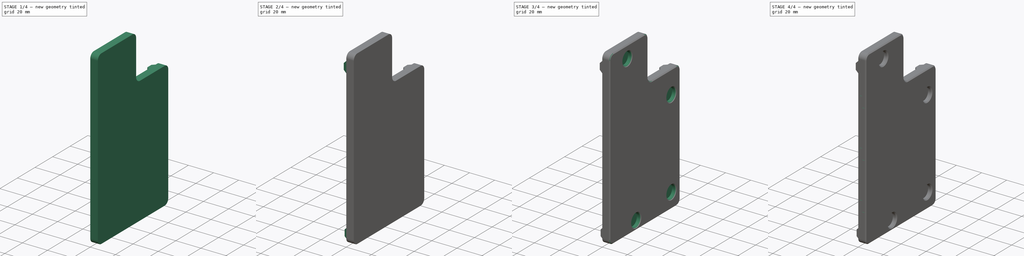
[diagram: build sequence overview — one tinted view per stage of 4, left to right]
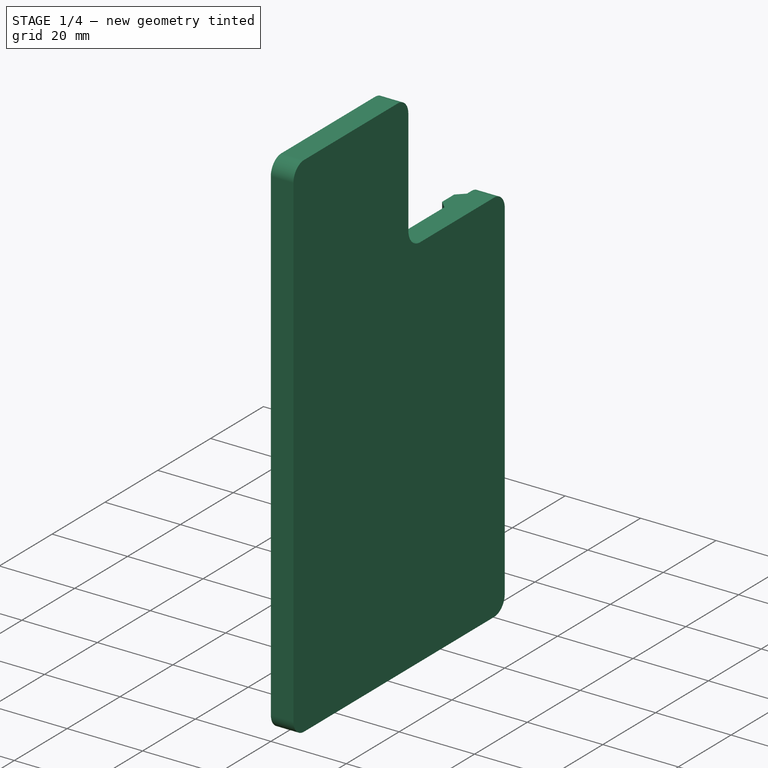
[diagram: stage 1 of 4 — iso view after this stage's code; geometry added in this stage tinted green]
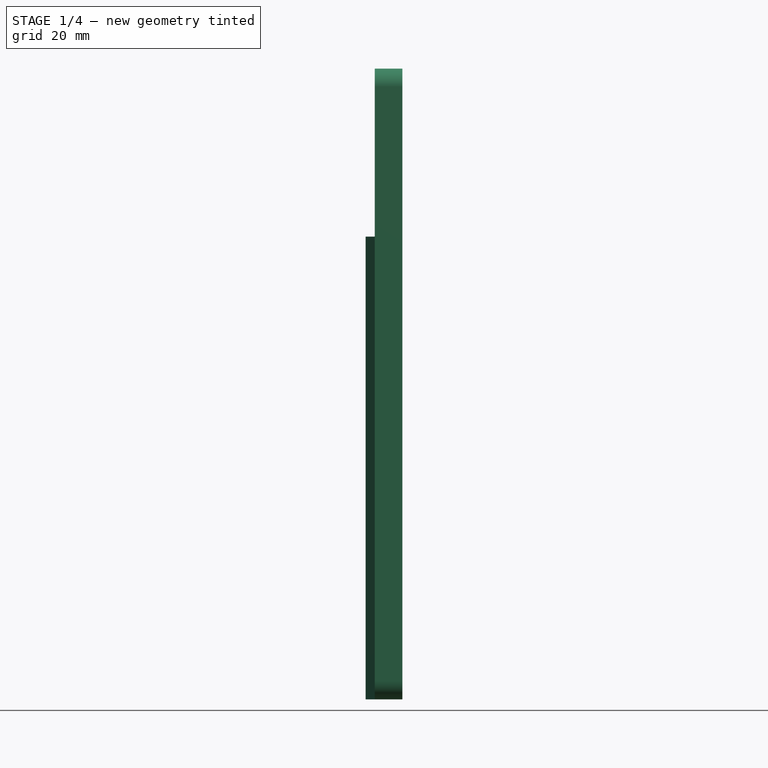
[diagram: stage 1 of 4 — front view after this stage's code; geometry added in this stage tinted green]
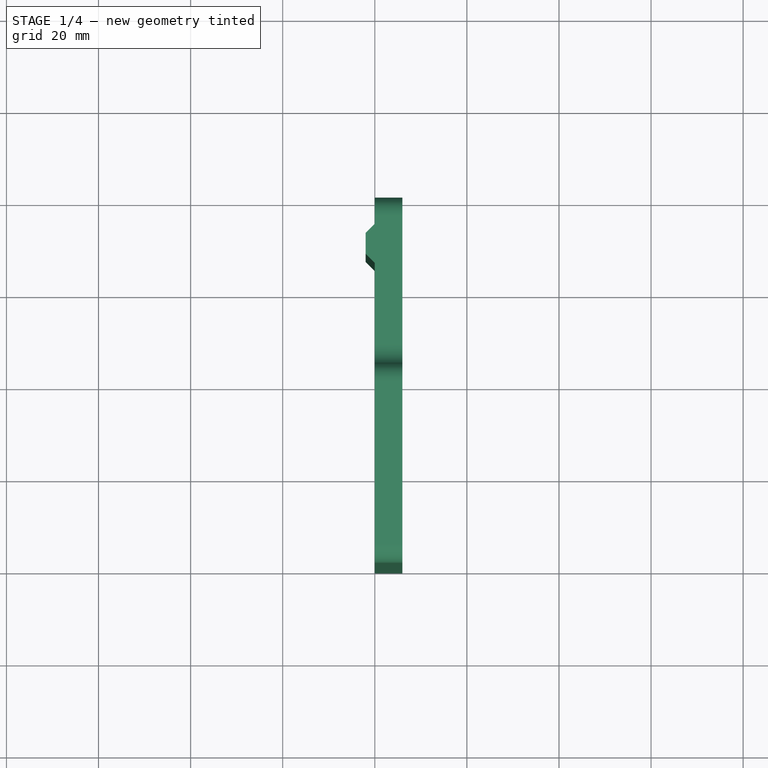
[diagram: stage 1 of 4 — top view after this stage's code; geometry added in this stage tinted green]
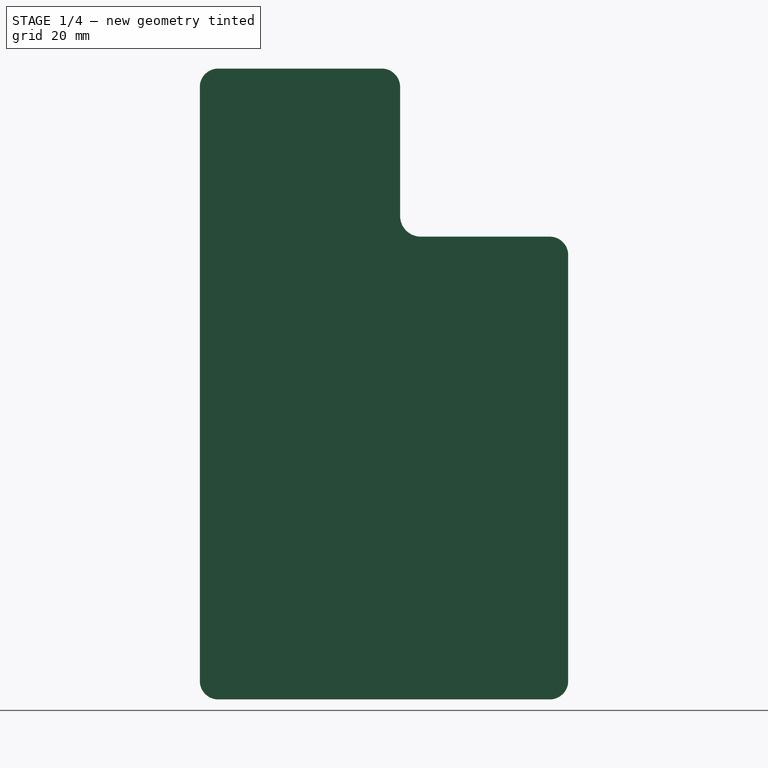
[diagram: stage 1 of 4 — right view after this stage's code; geometry added in this stage tinted green]
FCSTD DOCUMENT  (FreeCAD 1.0R39109 (Git))
Label: y-extrusion-support
License: All rights reserved
LicenseURL: http://en.wikipedia.org/wiki/All_rights_reserved
objects: Sketcher::SketchObject×8, PartDesign::Pad×4, PartDesign::Pocket×4, PartDesign::Chamfer×1, PartDesign::LinearPattern×1, PartDesign::Body×1
note: 46 computed .brp shape members not serialized (recipe doc carries the construction recipe); baked Part::Feature solids carry a one-line shape summary decoded from their .brp

FEATURE [Sketcher::SketchObject] Sketch334
  ArcFitTolerance = 0
  AttachmentSupport = -> [YZ_Plane300]
  FullyConstrained = true
  MakeInternals = false
  MapMode = 5
  Placement = pos=(0,0,0) rot=(0.57735,0.57735,0.57735;2.0944rad)
  sketch-geometry (21):
    g0: LineSegment StartX=-76 StartY=0 StartZ=0 EndX=-40.5 EndY=0 EndZ=0
    g1: LineSegment StartX=-36.5 StartY=-4 StartZ=0 EndX=-36.5 EndY=-32 EndZ=0
    g2: LineSegment StartX=-32 StartY=-36.5 StartZ=0 EndX=-4 EndY=-36.5 EndZ=0
    g3: LineSegment StartX=0 StartY=-40.5 StartZ=0 EndX=0 EndY=-133 EndZ=0
    g4: LineSegment StartX=-4 StartY=-137 StartZ=0 EndX=-76 EndY=-137 EndZ=0
    g5: LineSegment StartX=-80 StartY=-133 StartZ=0 EndX=-80 EndY=-4 EndZ=0
    g6: LineSegment [constr] StartX=0 StartY=-36 StartZ=0 EndX=-32 EndY=-36 EndZ=0
    g7: LineSegment [constr] StartX=-36 StartY=-32 StartZ=0 EndX=-36 EndY=0 EndZ=0
    g8: LineSegment [constr] StartX=-16 StartY=-36 StartZ=0 EndX=-16 EndY=-36.5 EndZ=0
    g9: ArcOfCircle CenterX=-32 CenterY=-32 CenterZ=0 NormalX=0 NormalY=0 NormalZ=1 AngleXU=0 Radius=4.5 StartAngle=3.14159 EndAngle=4.71239
    g10: ArcOfCircle [constr] CenterX=-32 CenterY=-32 CenterZ=0 NormalX=0 NormalY=0 NormalZ=1 AngleXU=0 Radius=4 StartAngle=3.14159 EndAngle=4.71239
    g11: ArcOfCircle CenterX=-76 CenterY=-4 CenterZ=0 NormalX=0 NormalY=0 NormalZ=1 AngleXU=0 Radius=4 StartAngle=1.5708 EndAngle=3.14159
    g12: GeomPoint [constr] X=-80 Y=0 Z=0
    g13: ArcOfCircle CenterX=-40.5 CenterY=-4 CenterZ=0 NormalX=0 NormalY=0 NormalZ=1 AngleXU=0 Radius=4 StartAngle=0 EndAngle=1.5708
    g14: GeomPoint [constr] X=-36.5 Y=0 Z=0
    g15: ArcOfCircle CenterX=-4 CenterY=-40.5 CenterZ=0 NormalX=0 NormalY=0 NormalZ=1 AngleXU=0 Radius=4 StartAngle=-9e-16 EndAngle=1.5708
    g16: GeomPoint [constr] X=0 Y=-36.5 Z=0
    g17: ArcOfCircle CenterX=-4 CenterY=-133 CenterZ=0 NormalX=0 NormalY=0 NormalZ=1 AngleXU=0 Radius=4 StartAngle=4.71239 EndAngle=6.28319
    g18: GeomPoint [constr] X=0 Y=-137 Z=0
    g19: ArcOfCircle CenterX=-76 CenterY=-133 CenterZ=0 NormalX=0 NormalY=0 NormalZ=1 AngleXU=0 Radius=4 StartAngle=3.14159 EndAngle=4.71239
    g20: GeomPoint [constr] X=-80 Y=-137 Z=0
  constraints (51):
    c: PointOnObject(g12,g-1)
    c: PointOnObject(g14,g-1)
    c: Vertical(g1)
    c: PointOnObject(g16,g-2)
    c: Horizontal(g2)
    c: PointOnObject(g18,g-2)
    c: Horizontal(g4)
    c: Vertical(g5)
    c: PointOnObject(g6,g-2)
    c: Horizontal(g6)
    c: PointOnObject(g7,g-1)
    c: Vertical(g7)
    c: Equal(g7,g6)
    c: DistanceY(g6) = -36
    c: DistanceY(g16,g6) = 0.5
    c: PointOnObject(g8,g2)
    c: Vertical(g8)
    c: Symmetric(g6,g6,g8)
    c: DistanceY(g18) = -137
    c: DistanceX(g12) = -80
    c: Coincident(g10,g9)
    c: Tangent(g10,g7) = 1.5708
    c: Tangent(g10,g6) = 1.5708
    c: Tangent(g9,g2) = -1.5708
    c: Radius(g10) = 4
    c: PointOnObject(g12,g0)
    c: PointOnObject(g12,g5)
    c: Tangent(g0,g11) = 1.5708
    c: Tangent(g5,g11) = 1.5708
    c: PointOnObject(g14,g0)
    c: PointOnObject(g14,g1)
    c: Tangent(g0,g13) = 1.5708
    c: Tangent(g1,g13) = 1.5708
    c: PointOnObject(g16,g2)
    c: PointOnObject(g16,g3)
    c: Tangent(g2,g15) = 1.5708
    c: Tangent(g3,g15) = 1.5708
    c: PointOnObject(g18,g3)
    c: PointOnObject(g18,g4)
    c: Tangent(g3,g17) = 1.5708
    c: Tangent(g4,g17) = 1.5708
    c: PointOnObject(g20,g4)
    c: PointOnObject(g20,g5)
    c: Tangent(g4,g19) = 1.5708
    c: Tangent(g5,g19) = 1.5708
    c: Equal(g11,g13)
    c: Equal(g13,g15)
    c: Equal(g15,g17)
    c: Equal(g17,g19)
    c: Radius(g19) = 4
    c: Tangent(g9,g1) = -1.5708
FEATURE [PartDesign::Pad] Pad078
  Direction = (1,0,0)
  Length = 6
  Length2 = 10
  Placement = pos=(0,0,0) rot=(1,1,1;2.0944rad)
  Profile = -> Sketch334
  ReferenceAxis = -> Sketch334 [N_Axis]
  Suppressed = false
  Type = 0
FEATURE [Sketcher::SketchObject] Sketch335
  ArcFitTolerance = 0
  AttachmentSupport = -> [XY_Plane300]
  FullyConstrained = true
  MakeInternals = false
  MapMode = 5
  sketch-geometry (10):
    g0: LineSegment [constr] StartX=0 StartY=-5.3 StartZ=0 EndX=-2 EndY=-7.3 EndZ=0
    g1: LineSegment [constr] StartX=-2 StartY=-7.3 StartZ=0 EndX=-2 EndY=-12.7 EndZ=0
    g2: LineSegment [constr] StartX=-2 StartY=-12.7 StartZ=0 EndX=0 EndY=-14.7 EndZ=0
    g3: LineSegment [constr] StartX=0 StartY=-14.7 StartZ=0 EndX=0 EndY=-5.3 EndZ=0
    g4: GeomPoint [constr] X=0 Y=-10 Z=0
    g5: LineSegment StartX=0 StartY=-5.72426 StartZ=0 EndX=-2 EndY=-7.72426 EndZ=0
    g6: LineSegment StartX=-2 StartY=-7.72426 StartZ=0 EndX=-2 EndY=-12.2757 EndZ=0
    g7: LineSegment StartX=-2 StartY=-12.2757 StartZ=0 EndX=0 EndY=-14.2757 EndZ=0
    g8: LineSegment StartX=0 StartY=-14.2757 StartZ=0 EndX=0 EndY=-5.72426 EndZ=0
    g9: LineSegment [constr] StartX=-1 StartY=-6.3 StartZ=0 EndX=-0.787868 EndY=-6.51213 EndZ=0
  constraints (27):
    c: PointOnObject(g0,g-2)
    c: Coincident(g0,g1)
    c: Vertical(g1)
    c: Coincident(g1,g2)
    c: PointOnObject(g2,g-2)
    c: Coincident(g2,g3)
    c: Coincident(g3,g0)
    c: Perpendicular(g2,g0)
    c: DistanceX(g0,g0) = 2
    c: DistanceY(g1,g1) = 5.4
    c: Symmetric(g2,g0,g4)
    c: DistanceY(g4) = -10
    c: Angle(g0) = -2.35619
    c: PointOnObject(g5,g3)
    c: PointOnObject(g5,g1)
    c: Coincident(g5,g6)
    c: PointOnObject(g6,g1)
    c: Coincident(g6,g7)
    c: Coincident(g7,g8)
    c: Coincident(g8,g5)
    c: Parallel(g7,g2)
    c: Parallel(g5,g0)
    c: Symmetric(g5,g7,g4)
    c: PointOnObject(g9,g5)
    c: Perpendicular(g5,g9)
    c: Symmetric(g0,g0,g9)
    c: Distance(g9) = 0.3
FEATURE [PartDesign::Pad] Pad079
  BaseFeature = -> Pad078
  Direction = (0,0,1)
  Length = 137
  Length2 = -36.5
  Placement = pos=(0,0,0) rot=(1,1,1;2.0944rad)
  Profile = -> Sketch335
  ReferenceAxis = -> Sketch335 [N_Axis]
  Reversed = true
  Suppressed = false
  Type = 4
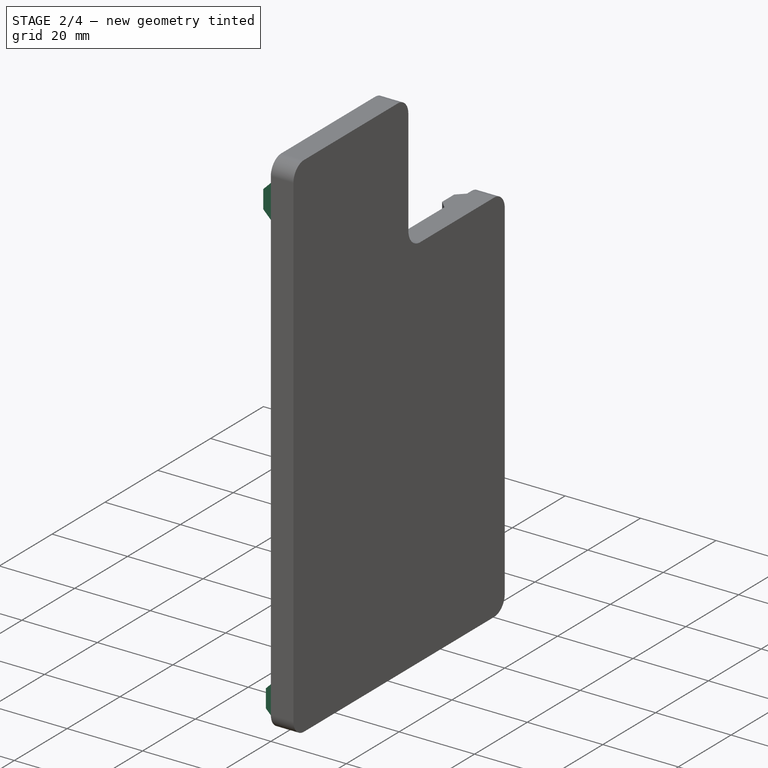
[diagram: stage 2 of 4 — iso view after this stage's code; geometry added in this stage tinted green]
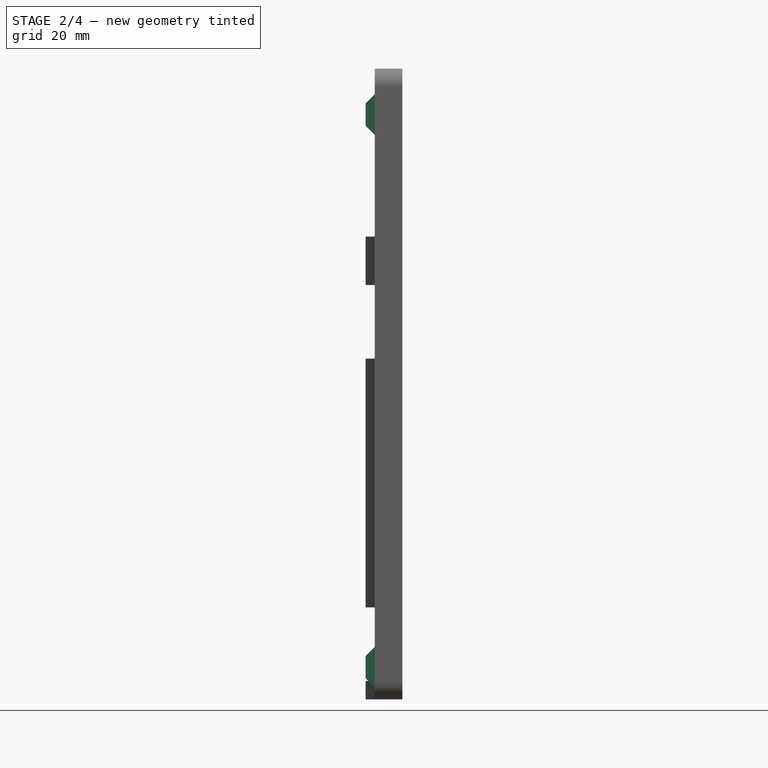
[diagram: stage 2 of 4 — front view after this stage's code; geometry added in this stage tinted green]
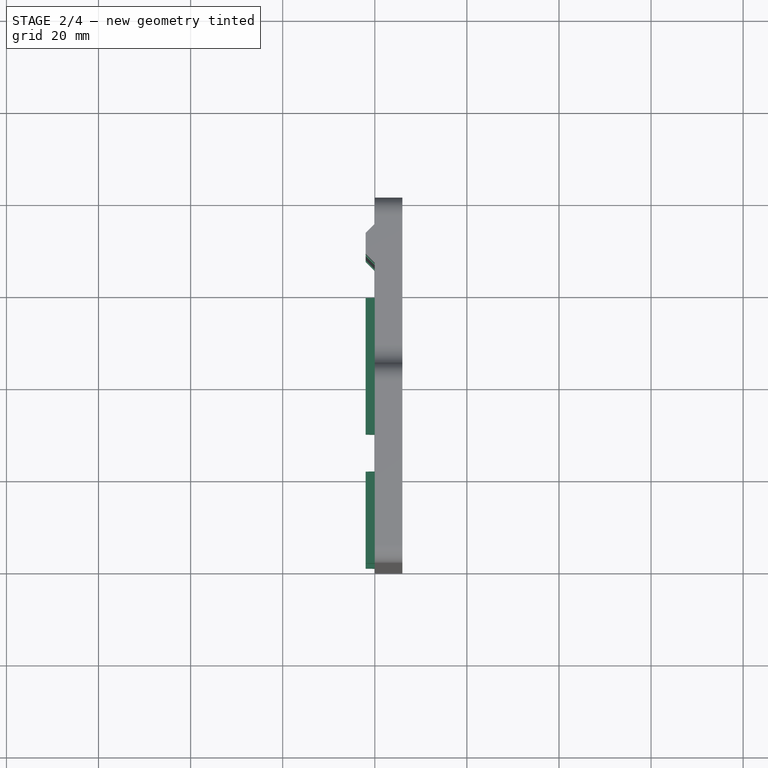
[diagram: stage 2 of 4 — top view after this stage's code; geometry added in this stage tinted green]
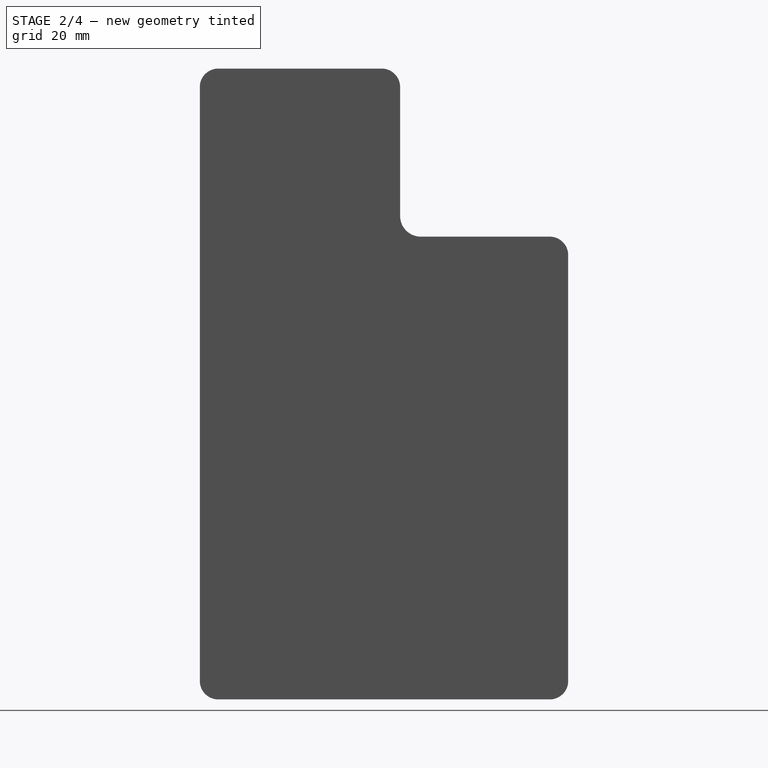
[diagram: stage 2 of 4 — right view after this stage's code; geometry added in this stage tinted green]
FEATURE [Sketcher::SketchObject] Sketch337
  ArcFitTolerance = 0
  AttachmentSupport = -> [YZ_Plane300]
  FullyConstrained = true
  MakeInternals = false
  MapMode = 5
  Placement = pos=(0,0,0) rot=(0.57735,0.57735,0.57735;2.0944rad)
  sketch-geometry (20):
    g0: LineSegment StartX=-20 StartY=-47 StartZ=0 EndX=0 EndY=-47 EndZ=0
    g1: LineSegment StartX=0 StartY=-47 StartZ=0 EndX=0 EndY=-63 EndZ=0
    g2: LineSegment StartX=0 StartY=-63 StartZ=0 EndX=-20 EndY=-63 EndZ=0
    g3: LineSegment StartX=-20 StartY=-63 StartZ=0 EndX=-20 EndY=-47 EndZ=0
    g4: GeomPoint [constr] X=-10 Y=-55 Z=0
    g5: LineSegment StartX=-68 StartY=0 StartZ=0 EndX=-52 EndY=0 EndZ=0
    g6: LineSegment StartX=-52 StartY=0 StartZ=0 EndX=-52 EndY=-20 EndZ=0
    g7: LineSegment StartX=-52 StartY=-20 StartZ=0 EndX=-68 EndY=-20 EndZ=0
    g8: LineSegment StartX=-68 StartY=-20 StartZ=0 EndX=-68 EndY=0 EndZ=0
    g9: LineSegment StartX=-58 StartY=-120 StartZ=0 EndX=-42 EndY=-120 EndZ=0
    g10: LineSegment StartX=-42 StartY=-120 StartZ=0 EndX=-42 EndY=-140 EndZ=0
    g11: LineSegment StartX=-42 StartY=-140 StartZ=0 EndX=-58 EndY=-140 EndZ=0
    g12: LineSegment StartX=-58 StartY=-140 StartZ=0 EndX=-58 EndY=-120 EndZ=0
    g13: GeomPoint [constr] X=-60 Y=-10 Z=0
    g14: GeomPoint [constr] X=-50 Y=-130 Z=0
    g15: LineSegment StartX=-20 StartY=-117 StartZ=0 EndX=0 EndY=-117 EndZ=0
    g16: LineSegment StartX=0 StartY=-117 StartZ=0 EndX=0 EndY=-133 EndZ=0
    g17: LineSegment StartX=0 StartY=-133 StartZ=0 EndX=-20 EndY=-133 EndZ=0
    g18: LineSegment StartX=-20 StartY=-133 StartZ=0 EndX=-20 EndY=-117 EndZ=0
    g19: GeomPoint [constr] X=-10 Y=-125 Z=0
  constraints (52):
    c: Coincident(g0,g1)
    c: Coincident(g1,g2)
    c: Coincident(g2,g3)
    c: Coincident(g3,g0)
    c: Horizontal(g0)
    c: Horizontal(g2)
    c: Vertical(g1)
    c: Vertical(g3)
    c: PointOnObject(g1,g-2)
    c: DistanceX(g2,g2) = 20
    c: Symmetric(g2,g0,g4)
    c: DistanceY(g4) = -55
    c: Coincident(g5,g6)
    c: Coincident(g6,g7)
    c: Coincident(g7,g8)
    c: Coincident(g8,g5)
    c: Horizontal(g5)
    c: Horizontal(g7)
    c: Vertical(g6)
    c: Vertical(g8)
    c: PointOnObject(g5,g-1)
    c: Coincident(g9,g10)
    c: Coincident(g10,g11)
    c: Coincident(g11,g12)
    c: Coincident(g12,g9)
    c: Horizontal(g9)
    c: Horizontal(g11)
    c: Vertical(g10)
    c: Vertical(g12)
    c: Symmetric(g7,g5,g13)
    c: DistanceX(g13) = -60
    c: Symmetric(g11,g9,g14)
    c: DistanceX(g14) = -50
    c: DistanceY(g14) = -130
    c: Coincident(g15,g16)
    c: Coincident(g16,g17)
    c: Coincident(g17,g18)
    c: Coincident(g18,g15)
    c: Horizontal(g15)
    c: Horizontal(g17)
    c: Vertical(g16)
    c: Vertical(g18)
    c: PointOnObject(g16,g-2)
    c: Symmetric(g15,g17,g19)
    c: DistanceY(g19) = -125
    c: DistanceY(g3,g3) = 16
    c: Equal(g18,g3)
    c: Equal(g15,g2)
    c: Equal(g7,g3)
    c: Equal(g9,g5)
    c: Equal(g6,g10)
    c: Equal(g10,g17)
FEATURE [Sketcher::SketchObject] Sketch338
  ArcFitTolerance = 0
  AttachmentSupport = -> [XZ_Plane300]
  FullyConstrained = true
  MakeInternals = false
  MapMode = 5
  Placement = pos=(0,0,0) rot=(1,0,0;1.5708rad)
  sketch-geometry (10):
    g0: GeomPoint [constr] X=0 Y=-10 Z=0
    g1: LineSegment [constr] StartX=0 StartY=-5.3 StartZ=0 EndX=0 EndY=-14.7 EndZ=0
    g2: LineSegment [constr] StartX=0 StartY=-14.7 StartZ=0 EndX=-2 EndY=-12.7 EndZ=0
    g3: LineSegment [constr] StartX=-2 StartY=-12.7 StartZ=0 EndX=-2 EndY=-7.3 EndZ=0
    g4: LineSegment [constr] StartX=-2 StartY=-7.3 StartZ=0 EndX=0 EndY=-5.3 EndZ=0
    g5: LineSegment StartX=-2 StartY=-7.58284 StartZ=0 EndX=0 EndY=-5.58284 EndZ=0
    g6: LineSegment StartX=0 StartY=-5.58284 StartZ=0 EndX=0 EndY=-14.4172 EndZ=0
    g7: LineSegment StartX=0 StartY=-14.4172 StartZ=0 EndX=-2 EndY=-12.4172 EndZ=0
    g8: LineSegment StartX=-2 StartY=-12.4172 StartZ=0 EndX=-2 EndY=-7.58284 EndZ=0
    g9: LineSegment [constr] StartX=-0.858579 StartY=-6.44142 StartZ=0 EndX=-1 EndY=-6.3 EndZ=0
  constraints (27):
    c: PointOnObject(g0,g-2)
    c: PointOnObject(g1,g-2)
    c: Coincident(g1,g2)
    c: Coincident(g2,g3)
    c: Vertical(g3)
    c: Coincident(g3,g4)
    c: Coincident(g4,g1)
    c: Symmetric(g1,g1,g0)
    c: Angle(g4) = 0.785398
    c: Perpendicular(g2,g4)
    c: DistanceX(g4,g4) = 2
    c: DistanceY(g3,g3) = 5.4
    c: PointOnObject(g5,g3)
    c: PointOnObject(g5,g1)
    c: Coincident(g5,g6)
    c: Coincident(g6,g7)
    c: PointOnObject(g7,g3)
    c: Coincident(g7,g8)
    c: Coincident(g8,g5)
    c: Parallel(g5,g4)
    c: Parallel(g7,g2)
    c: Symmetric(g6,g5,g0)
    c: PointOnObject(g9,g5)
    c: Symmetric(g3,g1,g9)
    c: Perpendicular(g4,g9)
    c: Distance(g9) = 0.2
    c: DistanceY(g0) = -10
FEATURE [PartDesign::Pad] Pad080
  BaseFeature = -> Pad079
  Direction = (0,-1,2e-16)
  Length = 80
  Length2 = -36.5
  Placement = pos=(0,0,0) rot=(1,1,1;2.0944rad)
  Profile = -> Sketch338
  ReferenceAxis = -> Sketch338 [N_Axis]
  Suppressed = false
  Type = 4
FEATURE [Sketcher::SketchObject] Sketch339
  ArcFitTolerance = 0
  AttachmentSupport = -> [XZ_Plane300]
  FullyConstrained = true
  MakeInternals = false
  MapMode = 5
  Placement = pos=(0,0,0) rot=(1,0,0;1.5708rad)
  sketch-geometry (10):
    g0: LineSegment [constr] StartX=0 StartY=-134.7 StartZ=0 EndX=0 EndY=-125.3 EndZ=0
    g1: LineSegment [constr] StartX=0 StartY=-125.3 StartZ=0 EndX=-2 EndY=-127.3 EndZ=0
    g2: LineSegment [constr] StartX=-2 StartY=-127.3 StartZ=0 EndX=-2 EndY=-132.7 EndZ=0
    g3: LineSegment [constr] StartX=-2 StartY=-132.7 StartZ=0 EndX=0 EndY=-134.7 EndZ=0
    g4: GeomPoint [constr] X=0 Y=-130 Z=0
    g5: LineSegment StartX=0 StartY=-125.583 StartZ=0 EndX=-2 EndY=-127.583 EndZ=0
    g6: LineSegment StartX=-2 StartY=-127.583 StartZ=0 EndX=-2 EndY=-132.417 EndZ=0
    g7: LineSegment StartX=-2 StartY=-132.417 StartZ=0 EndX=-2e-16 EndY=-134.417 EndZ=0
    g8: LineSegment StartX=-2e-16 StartY=-134.417 StartZ=0 EndX=0 EndY=-125.583 EndZ=0
    g9: LineSegment [constr] StartX=-1 StartY=-126.3 StartZ=0 EndX=-0.858579 EndY=-126.441 EndZ=0
  constraints (27):
    c: PointOnObject(g0,g-2)
    c: PointOnObject(g0,g-2)
    c: Coincident(g0,g1)
    c: Coincident(g1,g2)
    c: Vertical(g2)
    c: Coincident(g2,g3)
    c: Coincident(g3,g0)
    c: Symmetric(g0,g0,g4)
    c: Perpendicular(g1,g3)
    c: Angle(g1) = -2.35619
    c: DistanceX(g1,g1) = 2
    c: DistanceY(g2,g2) = 5.4
    c: DistanceY(g4) = -130
    c: PointOnObject(g5,g0)
    c: PointOnObject(g5,g2)
    c: Coincident(g5,g6)
    c: PointOnObject(g6,g2)
    c: Coincident(g6,g7)
    c: Coincident(g7,g8)
    c: Coincident(g8,g5)
    c: Parallel(g5,g1)
    c: Parallel(g3,g7)
    c: Symmetric(g7,g5,g4)
    c: PointOnObject(g9,g5)
    c: Symmetric(g0,g1,g9)
    c: Perpendicular(g1,g9)
    c: Distance(g9) = 0.2
FEATURE [PartDesign::Pad] Pad081
  BaseFeature = -> Pad080
  Direction = (0,-1,2e-16)
  Length = 79
  Length2 = -20.3
  Placement = pos=(0,0,0) rot=(1,1,1;2.0944rad)
  Profile = -> Sketch339
  ReferenceAxis = -> Sketch339 [N_Axis]
  Suppressed = false
  Type = 4
FEATURE [PartDesign::Pocket] Pocket214
  BaseFeature = -> Pad081
  Direction = (-1,0,0)
  Length = 5
  Length2 = 5
  Placement = pos=(0,0,0) rot=(1,1,1;2.0944rad)
  Profile = -> Sketch337
  ReferenceAxis = -> Sketch337 [N_Axis]
  Refine = true
  Suppressed = false
  Type = 1
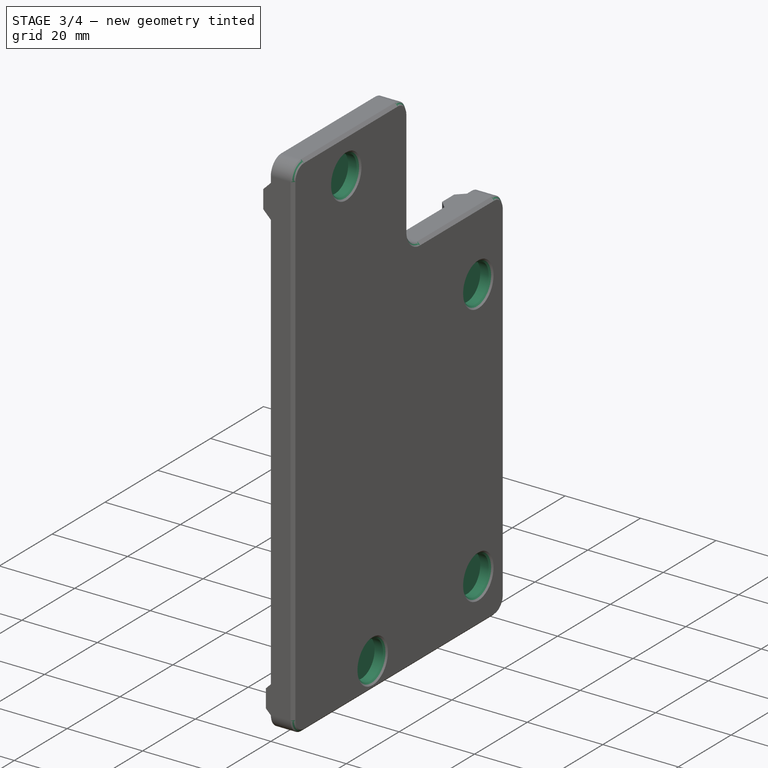
[diagram: stage 3 of 4 — iso view after this stage's code; geometry added in this stage tinted green]
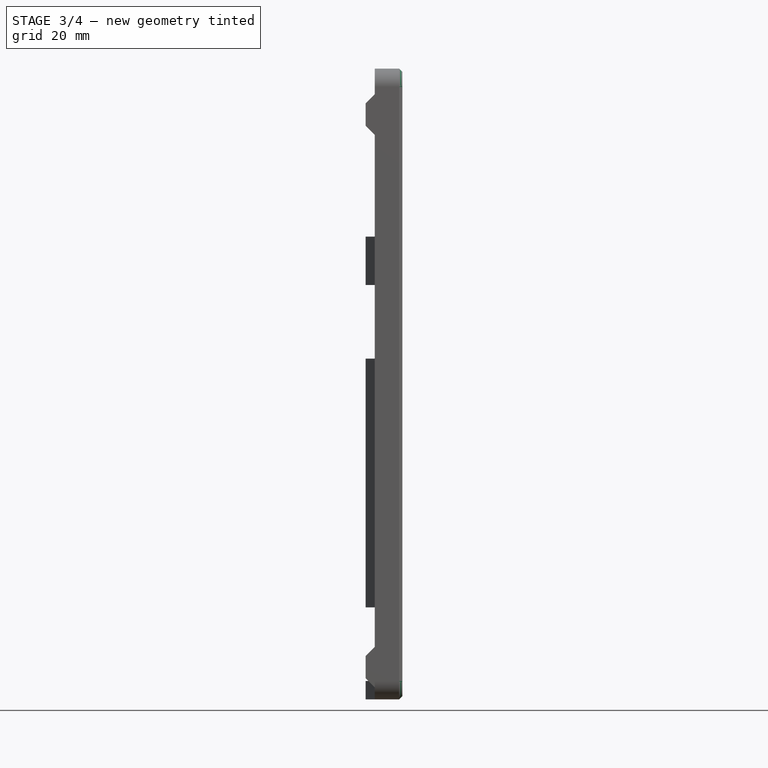
[diagram: stage 3 of 4 — front view after this stage's code; geometry added in this stage tinted green]
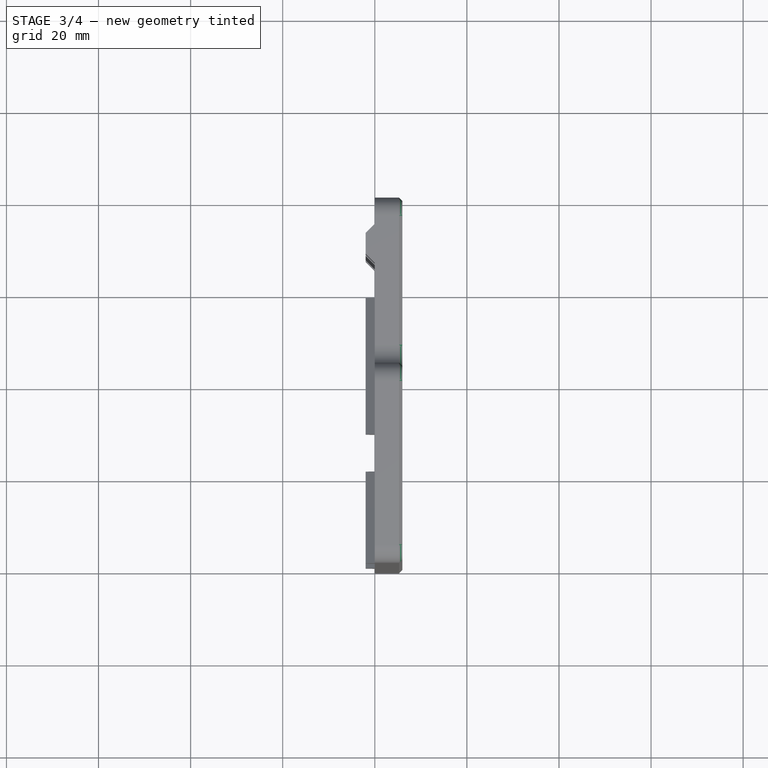
[diagram: stage 3 of 4 — top view after this stage's code; geometry added in this stage tinted green]
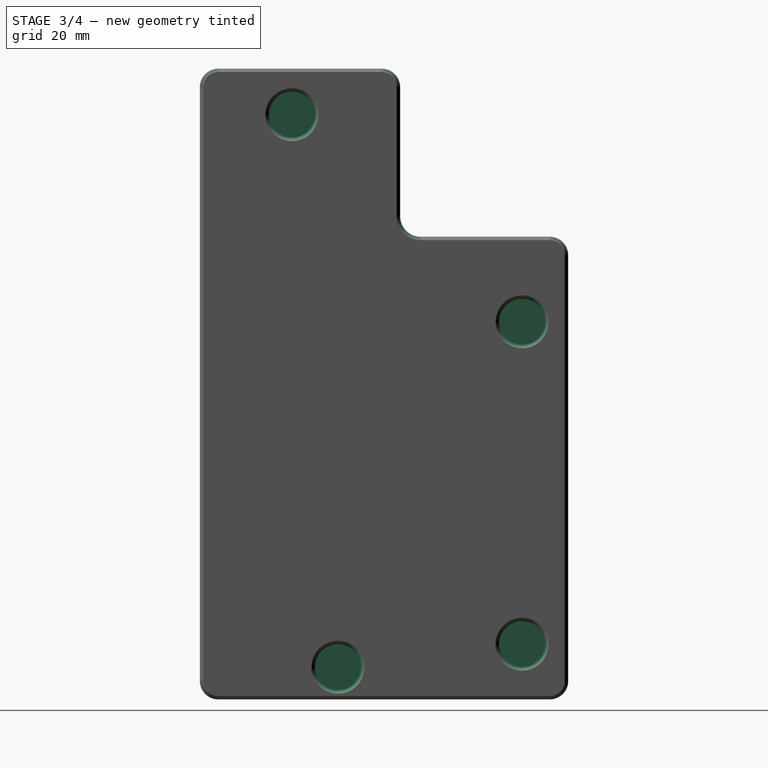
[diagram: stage 3 of 4 — right view after this stage's code; geometry added in this stage tinted green]
FEATURE [Sketcher::SketchObject] Sketch396
  ArcFitTolerance = 0
  AttachmentOffset = pos=(0,0,3) rot=(0,0,1;0rad)
  AttachmentSupport = -> [YZ_Plane300]
  FullyConstrained = true
  MakeInternals = false
  MapMode = 5
  Placement = pos=(3,0,0) rot=(0.57735,0.57735,0.57735;2.0944rad)
  sketch-geometry (4):
    g0: Circle CenterX=-60 CenterY=-10 CenterZ=0 NormalX=0 NormalY=0 NormalZ=1 AngleXU=0 Radius=5
    g1: Circle CenterX=-10 CenterY=-55 CenterZ=0 NormalX=0 NormalY=0 NormalZ=1 AngleXU=0 Radius=5
    g2: Circle CenterX=-10 CenterY=-125 CenterZ=0 NormalX=0 NormalY=0 NormalZ=1 AngleXU=0 Radius=5
    g3: Circle CenterX=-50 CenterY=-130 CenterZ=0 NormalX=0 NormalY=0 NormalZ=1 AngleXU=0 Radius=5
  constraints (12):
    c: DistanceY(g3) = -130
    c: Equal(g3,g2)
    c: Equal(g2,g1)
    c: Equal(g1,g0)
    c: Diameter(g0) = 10
    c: DistanceX(g3) = -50
    c: DistanceX(g0) = -60
    c: DistanceY(g0) = -10
    c: DistanceX(g1) = -10
    c: Vertical(g2,g1)
    c: DistanceY(g1) = -55
    c: DistanceY(g2) = -125
FEATURE [PartDesign::Pocket] Pocket278
  BaseFeature = -> Pocket214
  Direction = (-1,0,0)
  Length = 5
  Length2 = 5
  Placement = pos=(0,0,0) rot=(1,1,1;2.0944rad)
  Profile = -> Sketch396
  ReferenceAxis = -> Sketch396 [N_Axis]
  Reversed = true
  Suppressed = false
  Type = 1
FEATURE [Sketcher::SketchObject] Sketch397
  ArcFitTolerance = 0
  AttachmentOffset = pos=(0,0,2.7) rot=(0,0,1;0rad)
  AttachmentSupport = -> [YZ_Plane300]
  FullyConstrained = true
  MakeInternals = false
  MapMode = 5
  Placement = pos=(2.7,0,0) rot=(0.57735,0.57735,0.57735;2.0944rad)
  sketch-geometry (4):
    g0: Circle CenterX=-60 CenterY=-10 CenterZ=0 NormalX=0 NormalY=0 NormalZ=1 AngleXU=0 Radius=2.75
    g1: Circle CenterX=-10 CenterY=-55 CenterZ=0 NormalX=0 NormalY=0 NormalZ=1 AngleXU=0 Radius=2.75
    g2: Circle CenterX=-10 CenterY=-125 CenterZ=0 NormalX=0 NormalY=0 NormalZ=1 AngleXU=0 Radius=2.75
    g3: Circle CenterX=-50 CenterY=-130 CenterZ=0 NormalX=0 NormalY=0 NormalZ=1 AngleXU=0 Radius=2.75
  constraints (12):
    c: DistanceY(g3) = -130
    c: Equal(g3,g2)
    c: Equal(g2,g1)
    c: Equal(g1,g0)
    c: Diameter(g0) = 5.5
    c: DistanceX(g3) = -50
    c: DistanceX(g0) = -60
    c: DistanceY(g0) = -10
    c: DistanceX(g1) = -10
    c: Vertical(g2,g1)
    c: DistanceY(g1) = -55
    c: DistanceY(g2) = -125
FEATURE [PartDesign::Pocket] Pocket279
  BaseFeature = -> Pocket278
  Direction = (-1,0,0)
  Length = 5
  Length2 = 5
  Placement = pos=(0,0,0) rot=(1,1,1;2.0944rad)
  Profile = -> Sketch397
  ReferenceAxis = -> Sketch397 [N_Axis]
  Suppressed = false
  Type = 1
FEATURE [PartDesign::Chamfer] Chamfer
  Angle = 45
  Base = -> Pocket279 [Face5]
  BaseFeature = -> Pocket279
  ChamferType = 0
  FlipDirection = false
  Placement = pos=(0,0,0) rot=(1,1,1;2.0944rad)
  Size = 0.75
  Size2 = 1
  SupportTransform = false
  Suppressed = false
  UseAllEdges = false
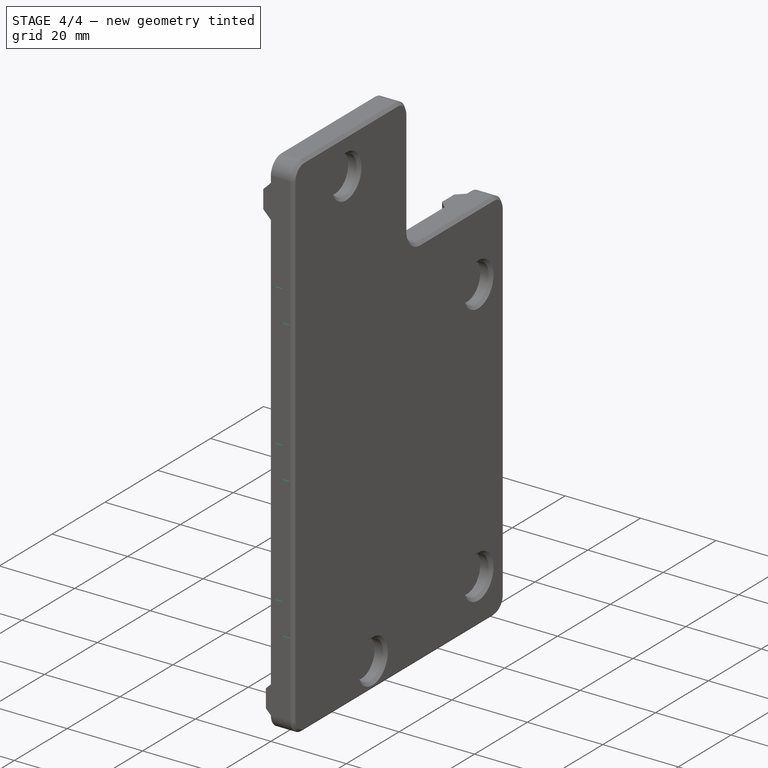
[diagram: stage 4 of 4 — iso view after this stage's code; geometry added in this stage tinted green]
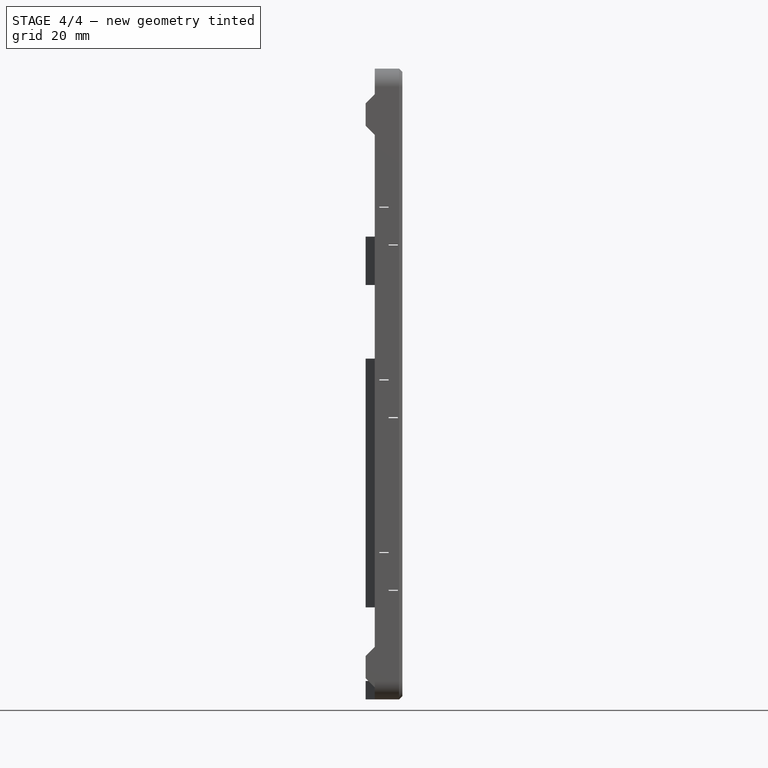
[diagram: stage 4 of 4 — front view after this stage's code; geometry added in this stage tinted green]
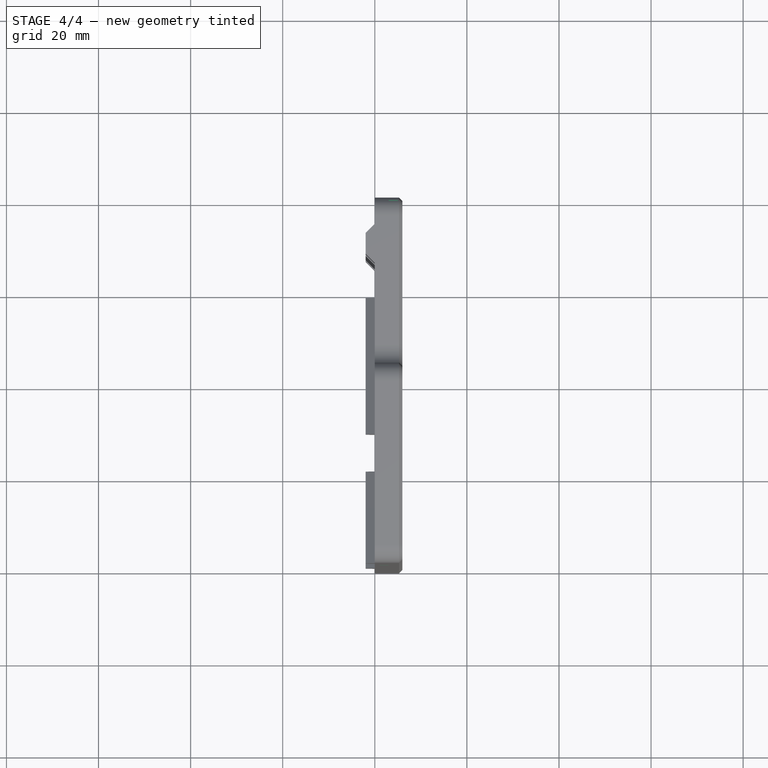
[diagram: stage 4 of 4 — top view after this stage's code; geometry added in this stage tinted green]
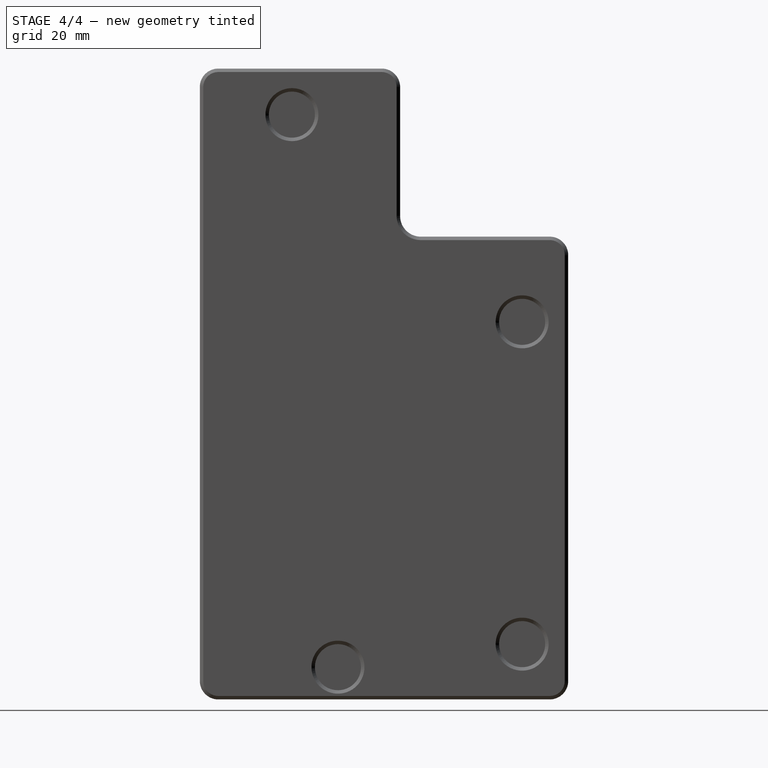
[diagram: stage 4 of 4 — right view after this stage's code; geometry added in this stage tinted green]
FEATURE [Sketcher::SketchObject] Sketch
  ArcFitTolerance = 1e-06
  AttachmentSupport = -> [XZ_Plane300]
  FullyConstrained = true
  MakeInternals = false
  MapMode = 5
  Placement = pos=(0,0,0) rot=(1,0,0;1.5708rad)
  sketch-geometry (8):
    g0: LineSegment StartX=1 StartY=-30 StartZ=0 EndX=1 EndY=-30.2 EndZ=0
    g1: LineSegment StartX=1 StartY=-30.2 StartZ=0 EndX=3 EndY=-30.2 EndZ=0
    g2: LineSegment StartX=3 StartY=-30.2 StartZ=0 EndX=3 EndY=-30 EndZ=0
    g3: LineSegment StartX=3 StartY=-30 StartZ=0 EndX=1 EndY=-30 EndZ=0
    g4: LineSegment StartX=3 StartY=-38.2 StartZ=0 EndX=3 EndY=-38.4 EndZ=0
    g5: LineSegment StartX=3 StartY=-38.4 StartZ=0 EndX=5 EndY=-38.4 EndZ=0
    g6: LineSegment StartX=5 StartY=-38.4 StartZ=0 EndX=5 EndY=-38.2 EndZ=0
    g7: LineSegment StartX=5 StartY=-38.2 StartZ=0 EndX=3 EndY=-38.2 EndZ=0
  constraints (24):
    c: Coincident(g0,g1)
    c: Coincident(g1,g2)
    c: Coincident(g2,g3)
    c: Coincident(g3,g0)
    c: Vertical(g0)
    c: Vertical(g2)
    c: Horizontal(g1)
    c: Horizontal(g3)
    c: DistanceY(g2,g2) = 0.2
    c: DistanceX(g3,g3) = 2
    c: DistanceX(g0) = 1
    c: Coincident(g4,g5)
    c: Coincident(g5,g6)
    c: Coincident(g6,g7)
    c: Coincident(g7,g4)
    c: Vertical(g4)
    c: Vertical(g6)
    c: Horizontal(g5)
    c: Horizontal(g7)
    c: Equal(g7,g3)
    c: Equal(g2,g4)
    c: DistanceY(g4,g1) = 8
    c: DistanceY(g2) = -30
    c: Vertical(g4,g1)
FEATURE [PartDesign::Pocket] Pocket
  BaseFeature = -> Chamfer
  Direction = (0,1,-2e-16)
  Length = 5
  Length2 = 5
  Midplane = true
  Placement = pos=(0,0,0) rot=(1,1,1;2.0944rad)
  Profile = -> Sketch
  ReferenceAxis = -> Sketch [N_Axis]
  Suppressed = false
  Type = 1
FEATURE [PartDesign::LinearPattern] LinearPattern
  BaseFeature = -> Pocket
  Direction = -> Z_Axis300
  Length = 75
  Mode = 0
  Occurrences = 3
  Offset = 37.5
  Originals = -> [Pocket]
  Placement = pos=(0,0,0) rot=(1,1,1;2.0944rad)
  Reversed = true
  Suppressed = false
  TransformMode = 0
FEATURE [PartDesign::Body] Body156  label="support-plate"
  AllowCompound = false
  Group = -> [Sketch334,Pad078,Sketch335,Pad079,Sketch337,Sketch338,Pad080,Sketch339,Pad081,Pocket214,Sketch396,Pocket278,Sketch397,Pocket279,Chamfer,Sketch,Pocket,LinearPattern]
  Origin = -> Origin301
  Tip = -> LinearPattern
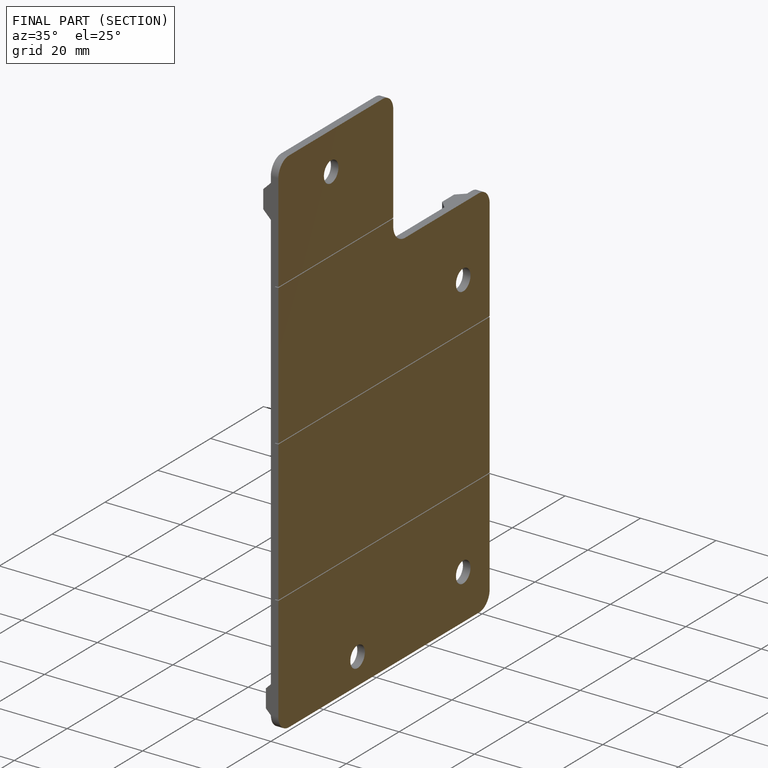
[diagram: finished part — half-section view (interior)]
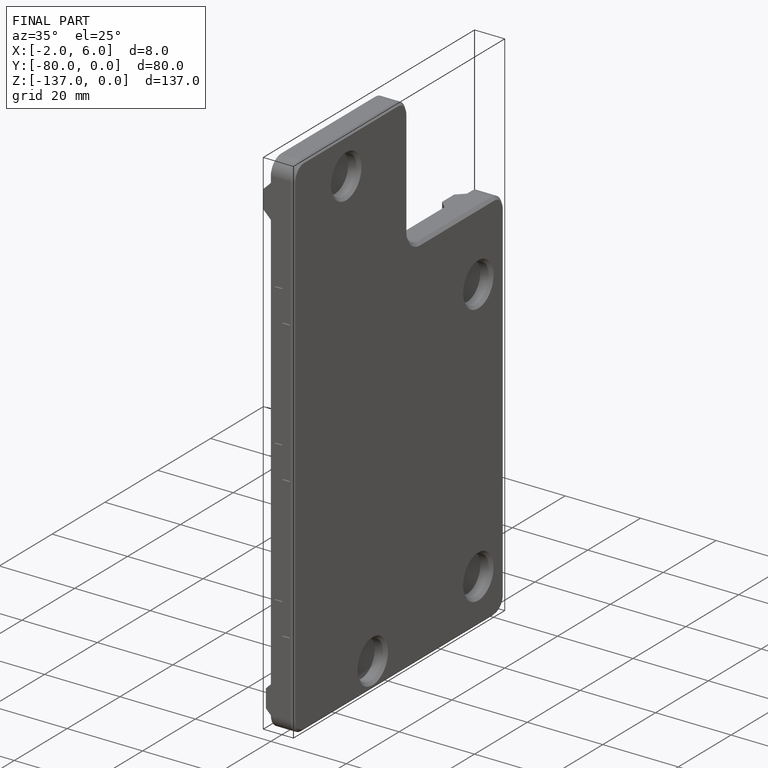
[diagram: finished part — iso view with bounding-box wireframe]
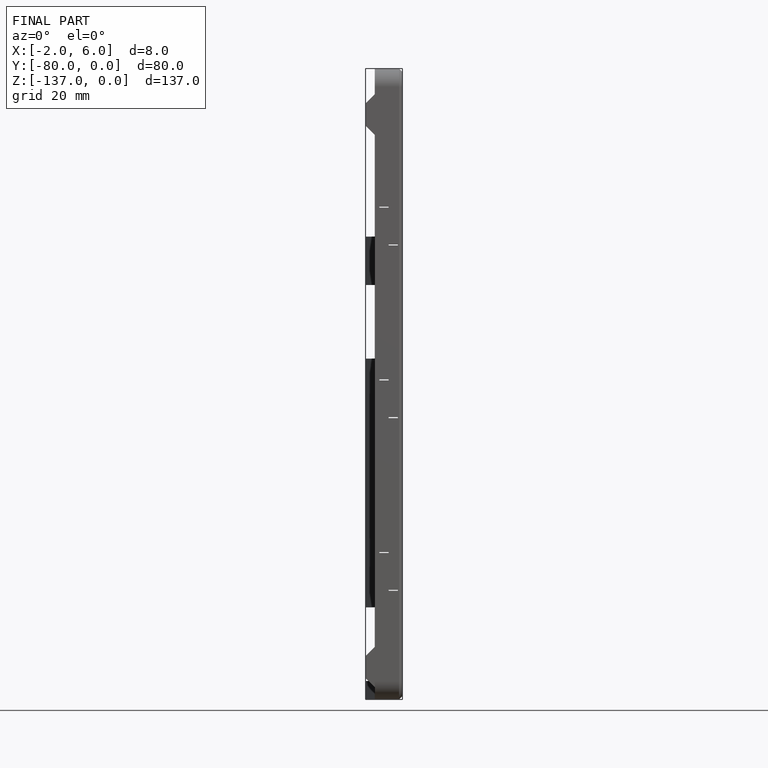
[diagram: finished part — front view with bounding-box wireframe]
